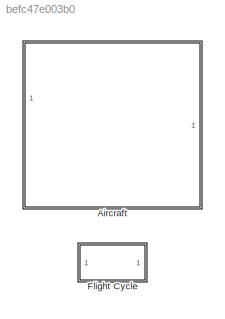
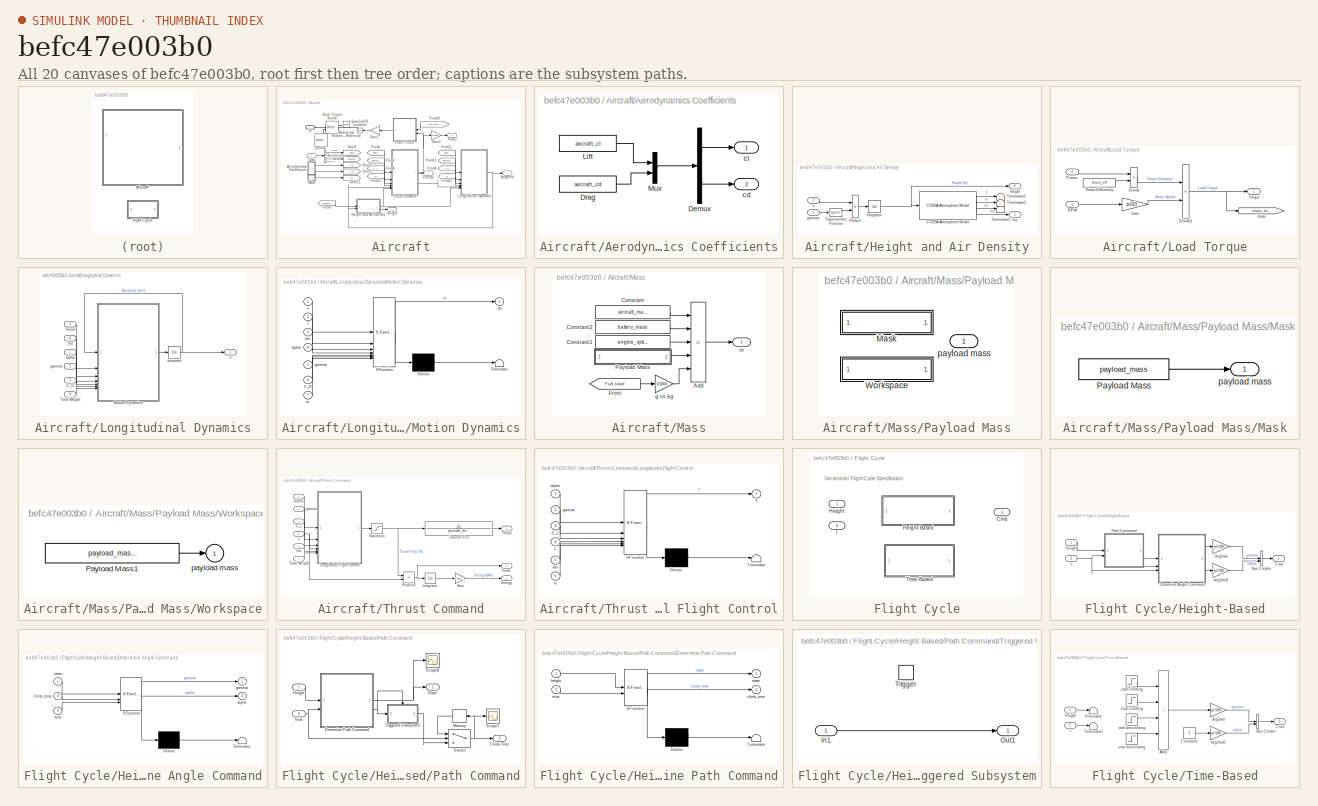
[diagram: thumbnail index - all 20 canvases of the model, root first then tree order]
MODEL slx_befc47e003b0
KIND library
CONFIG SolverName = VariableStepAuto
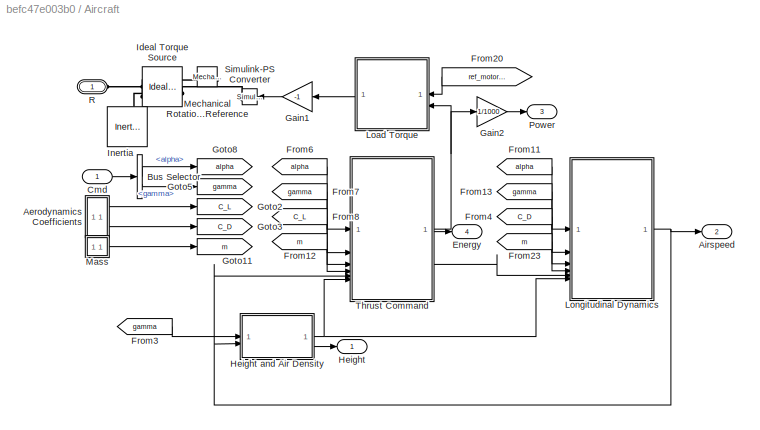
BLOCK [SubSystem] Aircraft
BLOCK [SubSystem] Aircraft/Aerodynamics Coefficients
BLOCK [Demux] Aircraft/Aerodynamics Coefficients/Demux
  Outputs = 2
BLOCK [Constant] Aircraft/Aerodynamics Coefficients/Drag
  Value = aircraft_cd
BLOCK [Constant] Aircraft/Aerodynamics Coefficients/Lift
  Value = aircraft_cl
BLOCK [Mux] Aircraft/Aerodynamics Coefficients/Mux
  DisplayOption = bar
  Inputs = 2
BLOCK [Outport] Aircraft/Aerodynamics Coefficients/cd
  Port = 2
  VectorParamsAs1DForOutWhenUnconnected = off
BLOCK [Outport] Aircraft/Aerodynamics Coefficients/cl
  VectorParamsAs1DForOutWhenUnconnected = off
BLOCK [Outport] Aircraft/Airspeed
  Port = 2
  VectorParamsAs1DForOutWhenUnconnected = off
BLOCK [BusSelector] Aircraft/Bus Selector
  OutputSignals = alpha,gamma
BLOCK [Inport] Aircraft/Cmd
  NameLocation = top
BLOCK [Outport] Aircraft/Energy
  Port = 4
  VectorParamsAs1DForOutWhenUnconnected = off
BLOCK [From] Aircraft/From11
  GotoTag = alpha
BLOCK [From] Aircraft/From12
  GotoTag = m
BLOCK [From] Aircraft/From13
  GotoTag = gamma
  TagVisibility = global
BLOCK [From] Aircraft/From20
  GotoTag = ref_motor_rpm
  TagVisibility = global
BLOCK [From] Aircraft/From23
  GotoTag = m
BLOCK [From] Aircraft/From3
  GotoTag = gamma
  TagVisibility = global
BLOCK [From] Aircraft/From4
  GotoTag = C_D
BLOCK [From] Aircraft/From6
  GotoTag = alpha
BLOCK [From] Aircraft/From7
  GotoTag = gamma
  TagVisibility = global
BLOCK [From] Aircraft/From8
  GotoTag = C_L
BLOCK [Gain] Aircraft/Gain1
  Gain = -1
BLOCK [Gain] Aircraft/Gain2
  Gain = 1/1000
BLOCK [Goto] Aircraft/Goto11
  GotoTag = m
BLOCK [Goto] Aircraft/Goto2
  GotoTag = C_L
BLOCK [Goto] Aircraft/Goto3
  GotoTag = C_D
BLOCK [Goto] Aircraft/Goto5
  GotoTag = gamma
  TagVisibility = global
BLOCK [Goto] Aircraft/Goto8
  GotoTag = alpha
BLOCK [Outport] Aircraft/Height
  VectorParamsAs1DForOutWhenUnconnected = off
BLOCK [SubSystem] Aircraft/Height and Air Density
BLOCK [Reference] Aircraft/Height and Air Density/COESA Atmosphere Model  REF=aerolibatmos2/COESA Atmosphere Model
  SourceBlock = aerolibatmos2/COESA Atmosphere Model
  SourceType = Atmosphere Model
BLOCK [Integrator] Aircraft/Height and Air Density/Integrator
  InitialCondition = aircraft_h0
BLOCK [Product] Aircraft/Height and Air Density/Product
BLOCK [Terminator] Aircraft/Height and Air Density/Terminator1
BLOCK [Terminator] Aircraft/Height and Air Density/Terminator2
BLOCK [Terminator] Aircraft/Height and Air Density/Terminator3
BLOCK [Trigonometry] Aircraft/Height and Air Density/Trigonometric Function
BLOCK [Inport] Aircraft/Height and Air Density/gamma
BLOCK [Outport] Aircraft/Height and Air Density/height
  Port = 2
  VectorParamsAs1DForOutWhenUnconnected = off
BLOCK [Outport] Aircraft/Height and Air Density/rho
  VectorParamsAs1DForOutWhenUnconnected = off
BLOCK [Inport] Aircraft/Height and Air Density/v
  Port = 2
BLOCK [Reference] Aircraft/Ideal Torque Source  REF=fl_lib/Mechanical/Mechanical Sources/Ideal Torque Source
  NameLocation = top
  SourceBlock = fl_lib/Mechanical/Mechanical Sources/Ideal Torque Source
  SourceType = Ideal Torque Source
BLOCK [Reference] Aircraft/Inertia  REF=fl_lib/Mechanical/Rotational Elements/Inertia
  NameLocation = right
  SourceBlock = fl_lib/Mechanical/Rotational Elements/Inertia
  SourceType = Inertia
BLOCK [SubSystem] Aircraft/Load Torque
  Tag = PublishSubsystem
BLOCK [Product] Aircraft/Load Torque/Divide
  Inputs = */
BLOCK [Product] Aircraft/Load Torque/Divide1
  Inputs = */
BLOCK [Gain] Aircraft/Load Torque/Gain
  Gain = pi/30
BLOCK [Goto] Aircraft/Load Torque/Goto
  GotoTag = torque_demand
  TagVisibility = global
BLOCK [Inport] Aircraft/Load Torque/Power
  Port = 2
BLOCK [Inport] Aircraft/Load Torque/RPM
BLOCK [Constant] Aircraft/Load Torque/Thrust Efficiency
  Value = thrust_eff
BLOCK [Outport] Aircraft/Load Torque/Torque
  VectorParamsAs1DForOutWhenUnconnected = off
BLOCK [SubSystem] Aircraft/Longitudinal Dynamics
BLOCK [Inport] Aircraft/Longitudinal Dynamics/C_D
  Port = 3
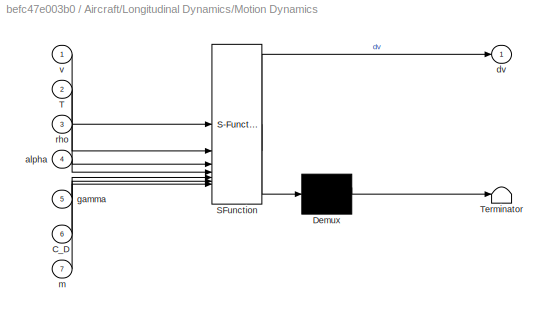
BLOCK [SubSystem] Aircraft/Longitudinal Dynamics/Motion Dynamics
  ErrorFcn = Stateflow.Translate.translate
  PermitHierarchicalResolution = ExplicitOnly
  SFBlockType = MATLAB Function
  TreatAsAtomicUnit = on
BLOCK [Demux] Aircraft/Longitudinal Dynamics/Motion Dynamics/ Demux 
  Outputs = 1
BLOCK [S-Function] Aircraft/Longitudinal Dynamics/Motion Dynamics/ SFunction 
  EnableBusSupport = off
  FunctionName = sf_sfun
  Parameters = Sw,g
  PortCounts = [7 2]
  SFcnIsStateOwnerBlock = off
  SFunctionDeploymentMode = off
  Tag = Stateflow S-Function 2
BLOCK [Terminator] Aircraft/Longitudinal Dynamics/Motion Dynamics/ Terminator 
BLOCK [Inport] Aircraft/Longitudinal Dynamics/Motion Dynamics/C_D
  Port = 6
BLOCK [Inport] Aircraft/Longitudinal Dynamics/Motion Dynamics/T
  Port = 2
BLOCK [Inport] Aircraft/Longitudinal Dynamics/Motion Dynamics/alpha
  Port = 4
BLOCK [Outport] Aircraft/Longitudinal Dynamics/Motion Dynamics/dv
  VectorParamsAs1DForOutWhenUnconnected = off
BLOCK [Inport] Aircraft/Longitudinal Dynamics/Motion Dynamics/gamma
  Port = 5
BLOCK [Inport] Aircraft/Longitudinal Dynamics/Motion Dynamics/m
  Port = 7
BLOCK [Inport] Aircraft/Longitudinal Dynamics/Motion Dynamics/rho
  Port = 3
BLOCK [Inport] Aircraft/Longitudinal Dynamics/Motion Dynamics/v
BLOCK [Inport] Aircraft/Longitudinal Dynamics/Thrust
  Port = 5
BLOCK [Inport] Aircraft/Longitudinal Dynamics/Total Weight
  Port = 4
BLOCK [Integrator] Aircraft/Longitudinal Dynamics/airspeed
  InitialCondition = aircraft_v0
BLOCK [Inport] Aircraft/Longitudinal Dynamics/alpha
BLOCK [Inport] Aircraft/Longitudinal Dynamics/gamma
  Port = 2
BLOCK [Inport] Aircraft/Longitudinal Dynamics/rho
  Port = 6
BLOCK [Outport] Aircraft/Longitudinal Dynamics/v
  VectorParamsAs1DForOutWhenUnconnected = off
BLOCK [SubSystem] Aircraft/Mass
BLOCK [Sum] Aircraft/Mass/Add
  IconShape = rectangular
  Inputs = ++++-
BLOCK [Constant] Aircraft/Mass/Constant
  Value = aircraft_mass
BLOCK [Constant] Aircraft/Mass/Constant1
  Value = engine_system_mass
BLOCK [Constant] Aircraft/Mass/Constant2
  Value = battery_mass
BLOCK [From] Aircraft/Mass/From
  GotoTag = Fuel_Used
  TagVisibility = global
BLOCK [SubSystem] Aircraft/Mass/Payload Mass
  LabelModeActiveChoice = Mask
  Variant = on
  VariantControl = Variant1
  VariantControlMode = label
BLOCK [Outport] Aircraft/Mass/Payload Mass/ payload mass
  VectorParamsAs1DForOutWhenUnconnected = off
BLOCK [SubSystem] Aircraft/Mass/Payload Mass/Mask
  VariantControl = Mask
BLOCK [Constant] Aircraft/Mass/Payload Mass/Mask/Payload Mass
  Value = payload_mass
BLOCK [Outport] Aircraft/Mass/Payload Mass/Mask/payload mass
  VectorParamsAs1DForOutWhenUnconnected = off
BLOCK [SubSystem] Aircraft/Mass/Payload Mass/Workspace
  VariantControl = Workspace
BLOCK [Outport] Aircraft/Mass/Payload Mass/Workspace/ payload mass
  VectorParamsAs1DForOutWhenUnconnected = off
BLOCK [Constant] Aircraft/Mass/Payload Mass/Workspace/Payload Mass1
  Value = payload_mass_workspace
BLOCK [Gain] Aircraft/Mass/g to kg
  Gain = 1/1000
BLOCK [Outport] Aircraft/Mass/m
  VectorParamsAs1DForOutWhenUnconnected = off
BLOCK [Reference] Aircraft/Mechanical Rotational Reference  REF=fl_lib/Mechanical/Rotational Elements/Mechanical
Rotational Reference
  NameLocation = top
  SourceBlock = fl_lib/Mechanical/Rotational Elements/Mechanical\nRotational Reference
  SourceType = Mechanical\nRotational Reference
BLOCK [Outport] Aircraft/Power
  Port = 3
  VectorParamsAs1DForOutWhenUnconnected = off
BLOCK [PMIOPort] Aircraft/R
  Side = Left
BLOCK [Reference] Aircraft/Simulink-PS Converter  REF=nesl_utility/Simulink-PS
Converter
  SourceBlock = nesl_utility/Simulink-PS\nConverter
  SourceType = Simulink-PS\nConverter
BLOCK [SubSystem] Aircraft/Thrust Command
BLOCK [Inport] Aircraft/Thrust Command/C_L
  Port = 3
BLOCK [Outport] Aircraft/Thrust Command/Energy
  Port = 2
  VectorParamsAs1DForOutWhenUnconnected = off
BLOCK [Gain] Aircraft/Thrust Command/Gain
  Gain = 1/1000/3600
BLOCK [Integrator] Aircraft/Thrust Command/Integrator
BLOCK [SubSystem] Aircraft/Thrust Command/Longitudial Flight Control
  ErrorFcn = Stateflow.Translate.translate
  PermitHierarchicalResolution = ExplicitOnly
  SFBlockType = MATLAB Function
  TreatAsAtomicUnit = on
BLOCK [Demux] Aircraft/Thrust Command/Longitudial Flight Control/ Demux 
  Outputs = 1
BLOCK [S-Function] Aircraft/Thrust Command/Longitudial Flight Control/ SFunction 
  EnableBusSupport = off
  FunctionName = sf_sfun
  Parameters = Sw,g
  PortCounts = [6 2]
  SFcnIsStateOwnerBlock = off
  SFunctionDeploymentMode = off
  Tag = Stateflow S-Function 1
BLOCK [Terminator] Aircraft/Thrust Command/Longitudial Flight Control/ Terminator 
BLOCK [Inport] Aircraft/Thrust Command/Longitudial Flight Control/C_L
  Port = 3
BLOCK [Outport] Aircraft/Thrust Command/Longitudial Flight Control/T
  VectorParamsAs1DForOutWhenUnconnected = off
BLOCK [Inport] Aircraft/Thrust Command/Longitudial Flight Control/alpha
BLOCK [Inport] Aircraft/Thrust Command/Longitudial Flight Control/gamma
  Port = 2
BLOCK [Inport] Aircraft/Thrust Command/Longitudial Flight Control/m
  Port = 6
BLOCK [Inport] Aircraft/Thrust Command/Longitudial Flight Control/rho
  Port = 5
BLOCK [Inport] Aircraft/Thrust Command/Longitudial Flight Control/v
  Port = 4
BLOCK [Outport] Aircraft/Thrust Command/Power
  VectorParamsAs1DForOutWhenUnconnected = off
BLOCK [Product] Aircraft/Thrust Command/Product2
BLOCK [Saturate] Aircraft/Thrust Command/Saturation
  LowerLimit = 0
  UpperLimit = aircraft_max_thrust
BLOCK [Outport] Aircraft/Thrust Command/Thrust
  Port = 3
  VectorParamsAs1DForOutWhenUnconnected = off
BLOCK [Inport] Aircraft/Thrust Command/Total Weight
  Port = 4
BLOCK [TransferFcn] Aircraft/Thrust Command/Transfer Fcn
  Denominator = [aircraft_thrust_tau 1]
BLOCK [Inport] Aircraft/Thrust Command/alpha
BLOCK [Inport] Aircraft/Thrust Command/gamma
  Port = 2
BLOCK [Inport] Aircraft/Thrust Command/rho
  Port = 6
BLOCK [Inport] Aircraft/Thrust Command/v
  Port = 5
BLOCK [SubSystem] Flight Cycle
  AttributesFormatString = %<ActiveVariant>
  BlockChoice = Height-Based
  Variant = on
BLOCK [Inport] Flight Cycle/      t
  Port = 2
BLOCK [Outport] Flight Cycle/Cmd
  VectorParamsAs1DForOutWhenUnconnected = off
BLOCK [Inport] Flight Cycle/Height
BLOCK [SubSystem] Flight Cycle/Height-Based
  VariantControl = HeightBasedProfile
BLOCK [Inport] Flight Cycle/Height-Based/    t
  Port = 2
BLOCK [BusCreator] Flight Cycle/Height-Based/Bus Creator
  DisplayOption = bar
  InheritFromInputs = on
  Inputs = 2
BLOCK [Outport] Flight Cycle/Height-Based/Cmd
  VectorParamsAs1DForOutWhenUnconnected = off
BLOCK [SubSystem] Flight Cycle/Height-Based/Determine Angle Command
  ErrorFcn = Stateflow.Translate.translate
  PermitHierarchicalResolution = ExplicitOnly
  SFBlockType = MATLAB Function
  TreatAsAtomicUnit = on
BLOCK [Demux] Flight Cycle/Height-Based/Determine Angle Command/ Demux 
  Outputs = 1
BLOCK [S-Function] Flight Cycle/Height-Based/Determine Angle Command/ SFunction 
  EnableBusSupport = off
  FunctionName = sf_sfun
  Parameters = timeMax
  PortCounts = [3 3]
  SFcnIsStateOwnerBlock = off
  SFunctionDeploymentMode = off
  Tag = Stateflow S-Function 3
BLOCK [Terminator] Flight Cycle/Height-Based/Determine Angle Command/ Terminator 
BLOCK [Outport] Flight Cycle/Height-Based/Determine Angle Command/alpha
  Port = 2
  VectorParamsAs1DForOutWhenUnconnected = off
BLOCK [Inport] Flight Cycle/Height-Based/Determine Angle Command/climb_time
  Port = 2
BLOCK [Outport] Flight Cycle/Height-Based/Determine Angle Command/gamma
  VectorParamsAs1DForOutWhenUnconnected = off
BLOCK [Inport] Flight Cycle/Height-Based/Determine Angle Command/state
BLOCK [Inport] Flight Cycle/Height-Based/Determine Angle Command/time
  Port = 3
BLOCK [Inport] Flight Cycle/Height-Based/Height
BLOCK [SubSystem] Flight Cycle/Height-Based/Path Command
BLOCK [Outport] Flight Cycle/Height-Based/Path Command/Climb Time
  Port = 2
  VectorParamsAs1DForOutWhenUnconnected = off
BLOCK [SubSystem] Flight Cycle/Height-Based/Path Command/Determine Path Command
  ErrorFcn = Stateflow.Translate.translate
  PermitHierarchicalResolution = ExplicitOnly
  SFBlockType = MATLAB Function
  TreatAsAtomicUnit = on
BLOCK [Demux] Flight Cycle/Height-Based/Path Command/Determine Path Command/ Demux 
  Outputs = 1
BLOCK [S-Function] Flight Cycle/Height-Based/Path Command/Determine Path Command/ SFunction 
  EnableBusSupport = off
  FunctionName = sf_sfun
  Parameters = heightMax,timeLevel,timeMax
  PortCounts = [2 3]
  SFcnIsStateOwnerBlock = off
  SFunctionDeploymentMode = off
  Tag = Stateflow S-Function 4
BLOCK [Terminator] Flight Cycle/Height-Based/Path Command/Determine Path Command/ Terminator 
BLOCK [Outport] Flight Cycle/Height-Based/Path Command/Determine Path Command/climb_time
  Port = 2
  VectorParamsAs1DForOutWhenUnconnected = off
BLOCK [Inport] Flight Cycle/Height-Based/Path Command/Determine Path Command/height
BLOCK [Outport] Flight Cycle/Height-Based/Path Command/Determine Path Command/state
  VectorParamsAs1DForOutWhenUnconnected = off
BLOCK [Inport] Flight Cycle/Height-Based/Path Command/Determine Path Command/time
  Port = 2
BLOCK [Inport] Flight Cycle/Height-Based/Path Command/Height
BLOCK [Memory] Flight Cycle/Height-Based/Path Command/Memory
BLOCK [Scope] Flight Cycle/Height-Based/Path Command/Scope7
  ActiveDisplayYMaximum = 1258.44098
  ActiveDisplayYMinimum = -139.82678
  DataLoggingVariableName = ScopeData3
  Floating = off
  GraphicalSettings = {"GraphicalSettings":{"LegacySettings":true,"Style":{"AxesScalingProperties":{"ScaleAxesLimitsAtStop":false},"Style":{"AxesColor":"[0 0 0]","ChannelNames":[""],"ColorOrder":"[1 0.909803921568627 0.392156862745098;0.149019607843137 0.549019607843137 0.866666666666667;0.96078431372549 0.466666666666667 0.16078431372549;0.286274509803922 0.858823529411765 0.250980392156863;0.752941176470588 0.3607843...<+488ch>
  MultipleDisplayCache = [{"MaxYLimMag":1258.44098,"MaxYLimReal":1258.44098,"MinYLimMag":0,"MinYLimReal":-139.82678,"PlotAsMagnitudePhase":false,"ShowGrid":true,"ShowLegend":false,"Title":"%<SignalLabel>","YLabel":""}]
  NumInputPorts = 1
  ScopeFrameLocation = window
  WasSavedAsWebScope = on
  WindowPosition = [813.000000,358.000000,560.000000,420.000000,]
BLOCK [Scope] Flight Cycle/Height-Based/Path Command/Scope8
  ActiveDisplayYMaximum = 1.125
  ActiveDisplayYMinimum = -0.125
  DataLoggingVariableName = ScopeData4
  Floating = off
  GraphicalSettings = {"GraphicalSettings":{"LegacySettings":true,"Style":{"AxesScalingProperties":{"ScaleAxesLimitsAtStop":false},"Style":{"AxesColor":"[0 0 0]","ChannelNames":[""],"ColorOrder":"[1 0.909803921568627 0.392156862745098;0.149019607843137 0.549019607843137 0.866666666666667;0.96078431372549 0.466666666666667 0.16078431372549;0.286274509803922 0.858823529411765 0.250980392156863;0.752941176470588 0.3607843...<+488ch>
  MultipleDisplayCache = [{"MaxYLimMag":1.125,"MaxYLimReal":1.125,"MinYLimMag":0,"MinYLimReal":-0.125,"PlotAsMagnitudePhase":false,"ShowGrid":true,"ShowLegend":false,"Title":"%<SignalLabel>","YLabel":""}]
  NumInputPorts = 1
  ScopeFrameLocation = window
  WasSavedAsWebScope = on
  WindowPosition = [813.000000,358.000000,560.000000,420.000000,]
BLOCK [Outport] Flight Cycle/Height-Based/Path Command/State
  VectorParamsAs1DForOutWhenUnconnected = off
BLOCK [Switch] Flight Cycle/Height-Based/Path Command/Switch
  Criteria = u2 > Threshold
  InputSameDT = off
  SaturateOnIntegerOverflow = off
  Threshold = 1800
BLOCK [Inport] Flight Cycle/Height-Based/Path Command/Time
  Port = 2
BLOCK [SubSystem] Flight Cycle/Height-Based/Path Command/Triggered Subsystem
  TreatAsAtomicUnit = on
BLOCK [Inport] Flight Cycle/Height-Based/Path Command/Triggered Subsystem/In1
BLOCK [Outport] Flight Cycle/Height-Based/Path Command/Triggered Subsystem/Out1
  VectorParamsAs1DForOutWhenUnconnected = off
BLOCK [TriggerPort] Flight Cycle/Height-Based/Path Command/Triggered Subsystem/Trigger
  StatesWhenEnabling = held
  VariantControl = Variant
BLOCK [Gain] Flight Cycle/Height-Based/deg2rad
  Gain = pi/180
BLOCK [Gain] Flight Cycle/Height-Based/deg2rad1
  Gain = pi/180
BLOCK [SubSystem] Flight Cycle/Time-Based
  VariantControl = TimeBasedProfile
BLOCK [Inport] Flight Cycle/Time-Based/    t
  Port = 2
BLOCK [Sum] Flight Cycle/Time-Based/Add2
  IconShape = rectangular
  Inputs = ++++
BLOCK [BusCreator] Flight Cycle/Time-Based/Bus Creator
  DisplayOption = bar
  InheritFromInputs = on
  Inputs = 2
BLOCK [Outport] Flight Cycle/Time-Based/Cmd
  VectorParamsAs1DForOutWhenUnconnected = off
BLOCK [Constant] Flight Cycle/Time-Based/Constant1
  Value = 3
BLOCK [Inport] Flight Cycle/Time-Based/Height
BLOCK [Terminator] Flight Cycle/Time-Based/Terminator
BLOCK [Terminator] Flight Cycle/Time-Based/Terminator1
BLOCK [Gain] Flight Cycle/Time-Based/deg2rad
  Gain = pi/180
BLOCK [Gain] Flight Cycle/Time-Based/deg2rad1
  Gain = pi/180
BLOCK [Step] Flight Cycle/Time-Based/start climbing
  SampleTime = 0
  Time = time_ascent_start
BLOCK [Step] Flight Cycle/Time-Based/start descending
  FinalValue = -1
  SampleTime = 0
  Time = time_cycle_duration - time_ascent_duration - time_ascent_start
BLOCK [Step] Flight Cycle/Time-Based/stop climbing
  FinalValue = -1
  SampleTime = 0
  Time = time_ascent_start+time_ascent_duration
BLOCK [Step] Flight Cycle/Time-Based/stop descending
  SampleTime = 0
  Time = time_cycle_duration - time_ascent_start
ANNOTATION Flight Cycle: Variants for Flight Cycle Specification
CHART Aircraft/Thrust Command/Longitudial Flight Control states=1 transitions=1
  STATE_LABEL 'eML_blk_kernel()'
  STATE_LABEL 'SCRIPT:\nfunction T  = longFlightControl(alpha, gamma, C_L, g, v, rho, Sw, m)\n\nT = 1/sin(alpha)*(m*g*cos(gamma)-1/2*rho*v^2*C_L*Sw);\n'
CHART Aircraft/Longitudinal
Dynamics/Motion Dynamics states=1 transitions=1
  STATE_LABEL 'eML_blk_kernel()'
  STATE_LABEL 'SCRIPT:\nfunction dv  = motionDynamics(v, T, rho, alpha, gamma, Sw, g, C_D, m)\n\ndv = -1/2*rho*v^2*C_D*Sw/m - g*sin(gamma) + T*cos(alpha)/m;\n\n'
CHART Flight Cycle/Height-Based/Determine Angle Command states=1 transitions=1
  STATE_LABEL 'eML_blk_kernel()'
  STATE_LABEL 'SCRIPT:\nfunction [gamma, alpha] = angleCommand(state, climb_time, time, timeMax)\n\nif state == 2\n    gamma = 0;\n    alpha = 3;\nelse\n    if state == 0\n        gamma = 1;\n        alpha = 3;\n    else\n        if time < (timeMax - climb_time)\n        gamma = 0;\n        alpha = 3;\n        else\n        gamma = -1;\n        alpha = 3; \n        end\n    end\nend'
CHART Flight Cycle/Height-Based/Path Command/Determine Path Command states=1 transitions=1
  STATE_LABEL 'eML_blk_kernel()'
  STATE_LABEL 'SCRIPT:\nfunction [state, climb_time] = pathCommand(height, time, heightMax, timeMax, timeLevel)\nclimb_time = 0;\nstate = 0;\n\nif time < timeLevel\n    state = 2;\nelse    \n    if height < heightMax && time < timeMax/2\n        state = 0;\n    else\n        if climb_time == 0\n            climb_time = time-timeLevel;\n        end\n        state = 1;\n    end\nend'
CHART  states=0 transitions=0
CHART  states=0 transitions=0
CHART  states=0 transitions=0
CHART  states=0 transitions=0
